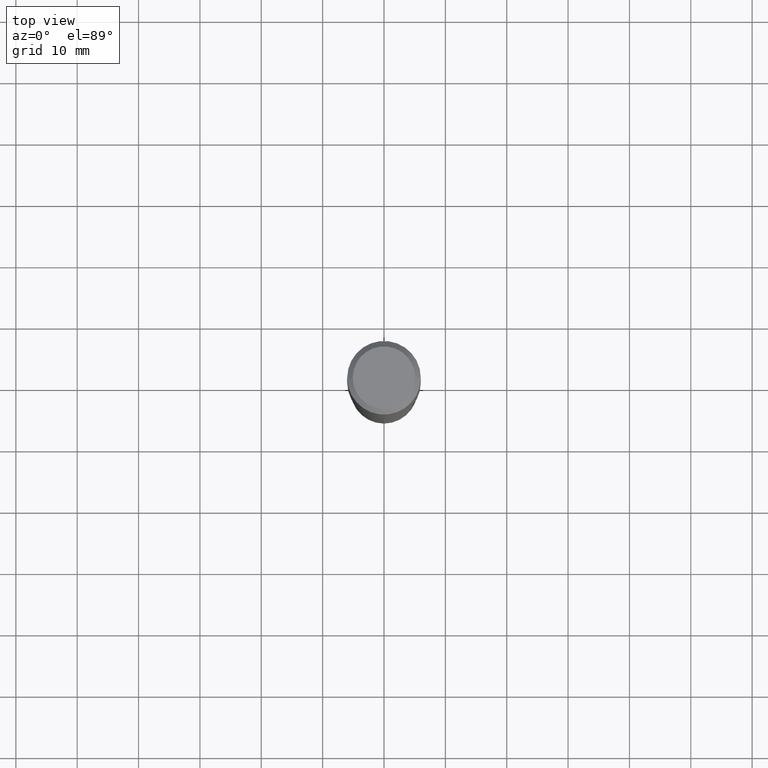
[diagram: clean part render]
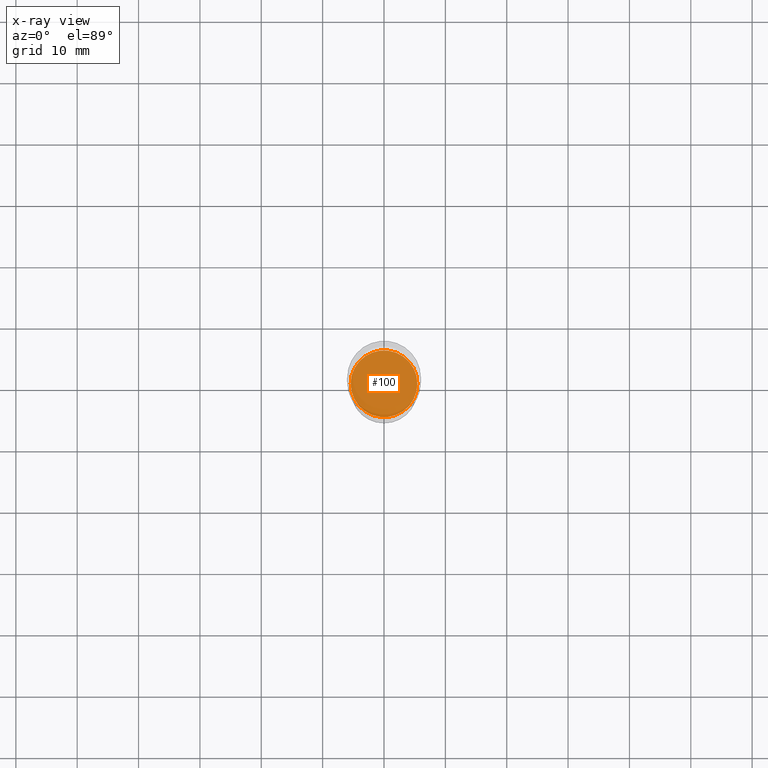
[diagram: x-ray — body ghosted, one internal face saturated and labeled with its STEP entity id]
A machine part, top view, then the same camera in x-ray: the body is ghosted and one INTERNAL B-rep face — a face not visible from any outside direction — is saturated and labeled: STEP entity #100.
In plain terms, the highlighted planar face has unit normal (-0, 0, 1).
Its self-contained STEP definition (entity closure, byte-faithful):
#18 = FACE_OUTER_BOUND ( 'NONE', #418, .T. ) ;
#22 = DIRECTION ( 'NONE',  ( -2.438088387897960049E-29, 3.491481338843145188E-15, 1.000000000000000000 ) ) ;
#55 = AXIS2_PLACEMENT_3D ( 'NONE', #139, #22, #175 ) ;
#87 = ORIENTED_EDGE ( 'NONE', *, *, #97, .F. ) ;
#97 = EDGE_CURVE ( 'NONE', #344, #230, #331, .T. ) ;
#100 = ADVANCED_FACE ( 'NONE', ( #18 ), #475, .F. ) ;
#122 = EDGE_CURVE ( 'NONE', #230, #344, #189, .T. ) ;
#139 = CARTESIAN_POINT ( 'NONE',  ( 5.574446143699018056E-29, -7.958831711892947948E-15, -2.279499999999999638 ) ) ;
#147 = DIRECTION ( 'NONE',  ( 1.000000000000000000, -6.982962677686266711E-15, 0.000000000000000000 ) ) ;
#161 = CARTESIAN_POINT ( 'NONE',  ( 0.2140499999999999903, -9.453534873051693735E-15, -2.279499999999999638 ) ) ;
#175 = DIRECTION ( 'NONE',  ( 1.000000000000000000, -6.982962677686265922E-15, 4.876176775795935793E-29 ) ) ;
#189 = CIRCLE ( 'NONE', #248, 0.2140499999999999903 ) ;
#216 = DIRECTION ( 'NONE',  ( -2.445468806185136597E-29, 3.491481338843145583E-15, 1.000000000000000000 ) ) ;
#230 = VERTEX_POINT ( 'NONE', #338 ) ;
#248 = AXIS2_PLACEMENT_3D ( 'NONE', #370, #330, #147 ) ;
#326 = DIRECTION ( 'NONE',  ( 1.000000000000000000, -6.982962677686266711E-15, 0.000000000000000000 ) ) ;
#330 = DIRECTION ( 'NONE',  ( -2.445468806185136597E-29, 3.491481338843145583E-15, 1.000000000000000000 ) ) ;
#331 = CIRCLE ( 'NONE', #401, 0.2140499999999999903 ) ;
#338 = CARTESIAN_POINT ( 'NONE',  ( -0.2140499999999999903, -6.435265758824343354E-15, -2.279499999999999638 ) ) ;
#344 = VERTEX_POINT ( 'NONE', #161 ) ;
#358 = CARTESIAN_POINT ( 'NONE',  ( 5.574446143699018056E-29, -7.958831711892947948E-15, -2.279499999999999638 ) ) ;
#370 = CARTESIAN_POINT ( 'NONE',  ( 5.574446143699018056E-29, -7.958831711892947948E-15, -2.279499999999999638 ) ) ;
#378 = ORIENTED_EDGE ( 'NONE', *, *, #122, .F. ) ;
#401 = AXIS2_PLACEMENT_3D ( 'NONE', #358, #216, #326 ) ;
#418 = EDGE_LOOP ( 'NONE', ( #87, #378 ) ) ;
#475 = PLANE ( 'NONE',  #55 ) ;